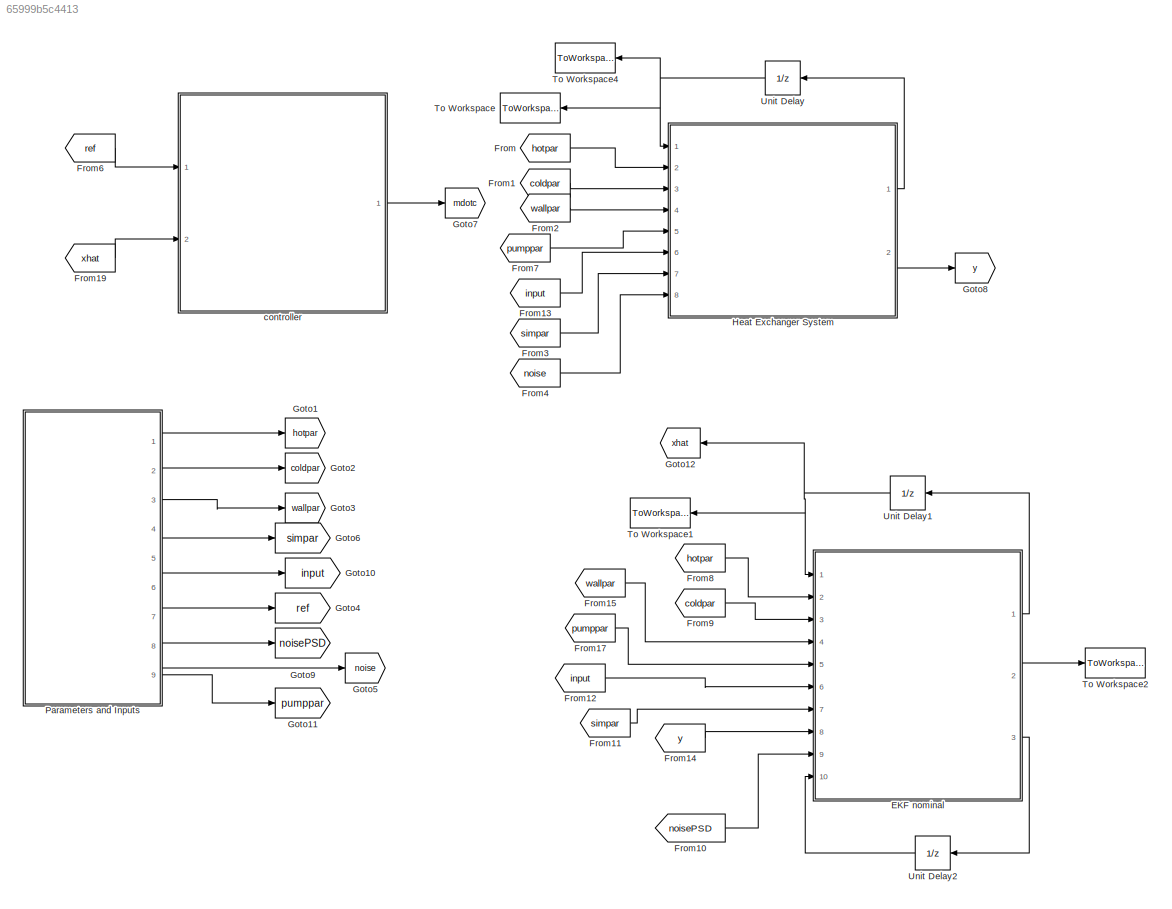
MODEL slx_65999b5c4413
KIND model
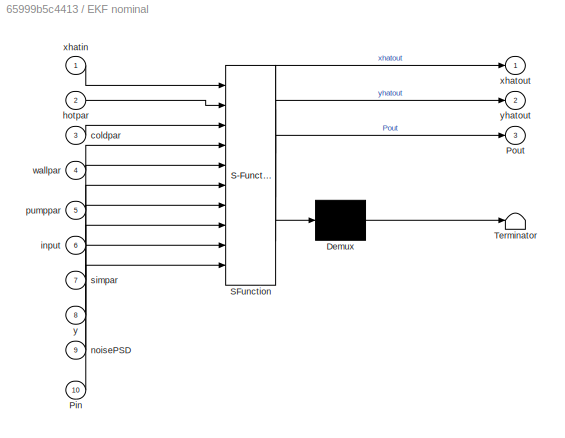
BLOCK [SubSystem] EKF nominal
  ErrorFcn = Stateflow.Translate.translate
  FunctionWithSeparateData = off
  MaskHideContents = off
  MinAlgLoopOccurrences = off
  Opaque = off
  PermitHierarchicalResolution = ExplicitOnly
  Ports = [10, 3]
  PropExecContextOutsideSubsystem = off
  RTWSystemCode = Auto
  RequestExecContextInheritance = off
  SFBlockType = MATLAB Function
  TreatAsAtomicUnit = on
BLOCK [Demux] EKF nominal/ Demux 
  Outputs = 1
  Ports = [1, 1]
BLOCK [S-Function] EKF nominal/ SFunction 
  EnableBusSupport = on
  FunctionName = sf_sfun
  PortCounts = [10 4]
  Ports = [10, 4]
  Tag = Stateflow S-Function HXpump_controller_sanity 1
BLOCK [Terminator] EKF nominal/ Terminator 
BLOCK [Inport] EKF nominal/Pin
  IconDisplay = Port number
  Port = 10
BLOCK [Outport] EKF nominal/Pout
  IconDisplay = Port number
  Port = 3
BLOCK [Inport] EKF nominal/coldpar
  IconDisplay = Port number
  Port = 3
BLOCK [Inport] EKF nominal/hotpar
  IconDisplay = Port number
  Port = 2
BLOCK [Inport] EKF nominal/input
  IconDisplay = Port number
  Port = 6
BLOCK [Inport] EKF nominal/noisePSD
  IconDisplay = Port number
  Port = 9
BLOCK [Inport] EKF nominal/pumppar
  IconDisplay = Port number
  Port = 5
BLOCK [Inport] EKF nominal/simpar
  IconDisplay = Port number
  Port = 7
BLOCK [Inport] EKF nominal/wallpar
  IconDisplay = Port number
  Port = 4
BLOCK [Inport] EKF nominal/xhatin
  IconDisplay = Port number
BLOCK [Outport] EKF nominal/xhatout
  IconDisplay = Port number
BLOCK [Inport] EKF nominal/y
  IconDisplay = Port number
  Port = 8
BLOCK [Outport] EKF nominal/yhatout
  IconDisplay = Port number
  Port = 2
BLOCK [From] From
  GotoTag = hotpar
  TagVisibility = global
BLOCK [From] From1
  GotoTag = coldpar
  TagVisibility = global
BLOCK [From] From10
  GotoTag = noisePSD
  TagVisibility = global
BLOCK [From] From11
  GotoTag = simpar
  TagVisibility = global
BLOCK [From] From12
  GotoTag = input
  TagVisibility = global
BLOCK [From] From13
  GotoTag = input
  TagVisibility = global
BLOCK [From] From14
  GotoTag = y
  TagVisibility = global
BLOCK [From] From15
  GotoTag = wallpar
  TagVisibility = global
BLOCK [From] From17
  GotoTag = pumppar
  TagVisibility = global
BLOCK [From] From19
  GotoTag = xhat
  TagVisibility = global
BLOCK [From] From2
  GotoTag = wallpar
  TagVisibility = global
BLOCK [From] From3
  GotoTag = simpar
  TagVisibility = global
BLOCK [From] From4
  GotoTag = noise
  TagVisibility = global
BLOCK [From] From6
  GotoTag = ref
  TagVisibility = global
BLOCK [From] From7
  GotoTag = pumppar
  TagVisibility = global
BLOCK [From] From8
  GotoTag = hotpar
  TagVisibility = global
BLOCK [From] From9
  GotoTag = coldpar
  TagVisibility = global
BLOCK [Goto] Goto1
  GotoTag = hotpar
  TagVisibility = global
BLOCK [Goto] Goto10
  GotoTag = input
  TagVisibility = global
BLOCK [Goto] Goto11
  GotoTag = pumppar
  TagVisibility = global
BLOCK [Goto] Goto12
  GotoTag = xhat
  TagVisibility = global
BLOCK [Goto] Goto2
  GotoTag = coldpar
  TagVisibility = global
BLOCK [Goto] Goto3
  GotoTag = wallpar
  TagVisibility = global
BLOCK [Goto] Goto4
  GotoTag = ref
  TagVisibility = global
BLOCK [Goto] Goto5
  GotoTag = noise
  TagVisibility = global
BLOCK [Goto] Goto6
  GotoTag = simpar
  TagVisibility = global
BLOCK [Goto] Goto7
  GotoTag = mdotc
  TagVisibility = global
BLOCK [Goto] Goto8
  GotoTag = y
  TagVisibility = global
BLOCK [Goto] Goto9
  GotoTag = noisePSD
  TagVisibility = global
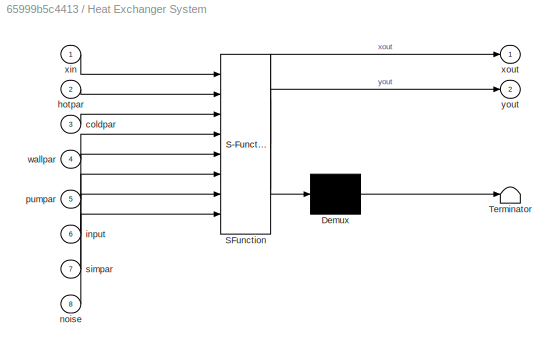
BLOCK [SubSystem] Heat Exchanger System
  ErrorFcn = Stateflow.Translate.translate
  FunctionWithSeparateData = off
  MaskHideContents = off
  MinAlgLoopOccurrences = off
  Opaque = off
  PermitHierarchicalResolution = ExplicitOnly
  Ports = [8, 2]
  PropExecContextOutsideSubsystem = off
  RTWSystemCode = Auto
  RequestExecContextInheritance = off
  SFBlockType = MATLAB Function
  TreatAsAtomicUnit = on
BLOCK [Demux] Heat Exchanger System/ Demux 
  Outputs = 1
  Ports = [1, 1]
BLOCK [S-Function] Heat Exchanger System/ SFunction 
  EnableBusSupport = on
  FunctionName = sf_sfun
  PortCounts = [8 3]
  Ports = [8, 3]
  Tag = Stateflow S-Function HXpump_controller_sanity 2
BLOCK [Terminator] Heat Exchanger System/ Terminator 
BLOCK [Inport] Heat Exchanger System/coldpar
  IconDisplay = Port number
  Port = 3
BLOCK [Inport] Heat Exchanger System/hotpar
  IconDisplay = Port number
  Port = 2
BLOCK [Inport] Heat Exchanger System/input
  IconDisplay = Port number
  Port = 6
BLOCK [Inport] Heat Exchanger System/noise
  IconDisplay = Port number
  Port = 8
BLOCK [Inport] Heat Exchanger System/pumpar
  IconDisplay = Port number
  Port = 5
BLOCK [Inport] Heat Exchanger System/simpar
  IconDisplay = Port number
  Port = 7
BLOCK [Inport] Heat Exchanger System/wallpar
  IconDisplay = Port number
  Port = 4
BLOCK [Inport] Heat Exchanger System/xin
  IconDisplay = Port number
BLOCK [Outport] Heat Exchanger System/xout
  IconDisplay = Port number
BLOCK [Outport] Heat Exchanger System/yout
  IconDisplay = Port number
  Port = 2
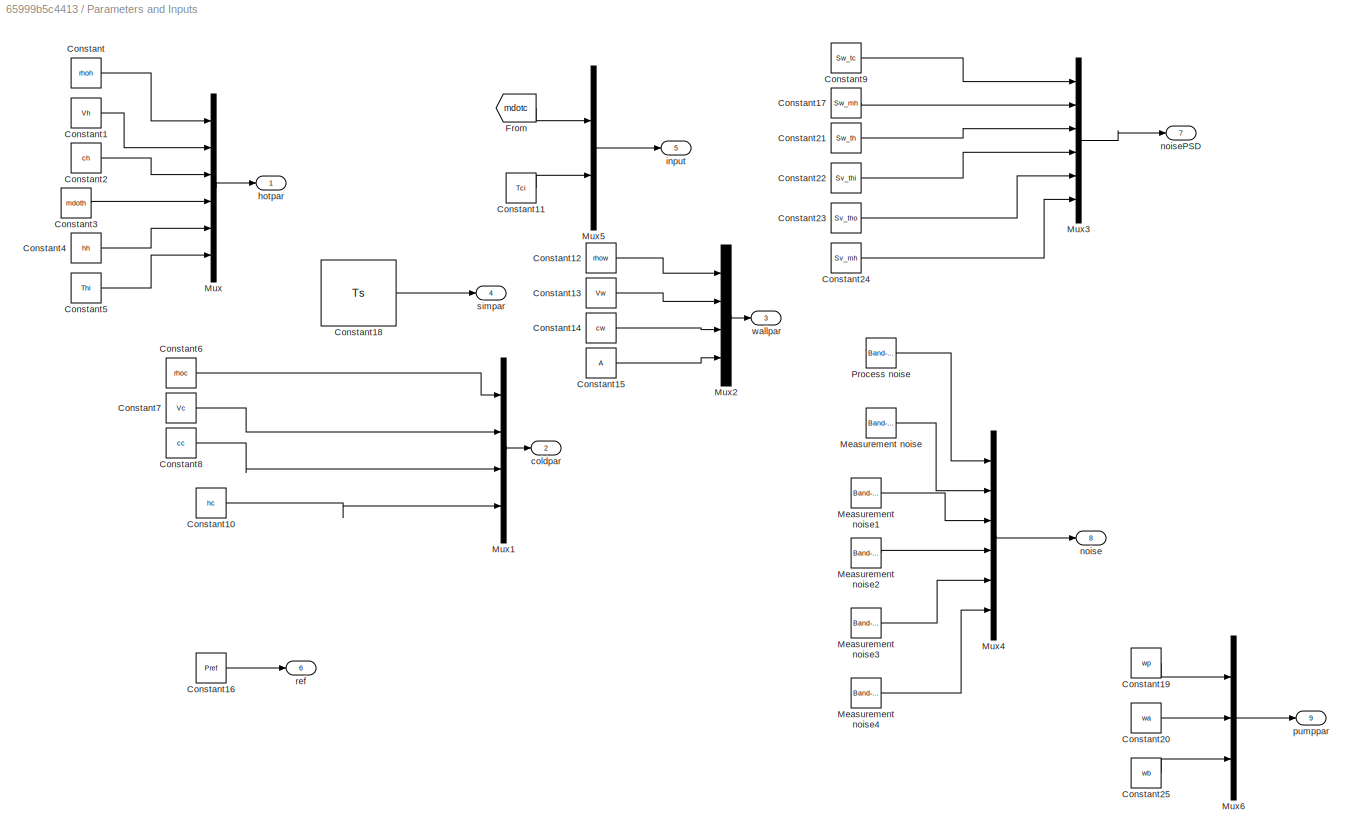
BLOCK [SubSystem] Parameters and Inputs
  FunctionWithSeparateData = off
  MaskHideContents = off
  MinAlgLoopOccurrences = off
  Opaque = off
  Ports = [0, 9]
  PropExecContextOutsideSubsystem = off
  RTWSystemCode = Auto
  RequestExecContextInheritance = off
BLOCK [Constant] Parameters and Inputs/Constant
  SampleTime = Ts
  Value = rhoh
BLOCK [Constant] Parameters and Inputs/Constant1
  SampleTime = Ts
  Value = Vh
BLOCK [Constant] Parameters and Inputs/Constant10
  SampleTime = Ts
  Value = hc
BLOCK [Constant] Parameters and Inputs/Constant11
  SampleTime = Ts
  Value = Tci
BLOCK [Constant] Parameters and Inputs/Constant12
  SampleTime = Ts
  Value = rhow
BLOCK [Constant] Parameters and Inputs/Constant13
  SampleTime = Ts
  Value = Vw
BLOCK [Constant] Parameters and Inputs/Constant14
  SampleTime = Ts
  Value = cw
BLOCK [Constant] Parameters and Inputs/Constant15
  SampleTime = Ts
  Value = A
BLOCK [Constant] Parameters and Inputs/Constant16
  SampleTime = Ts
  Value = Pref
BLOCK [Constant] Parameters and Inputs/Constant17
  SampleTime = Ts
  Value = Sw_mh
BLOCK [Constant] Parameters and Inputs/Constant18
  SampleTime = Ts
  Value = Ts
BLOCK [Constant] Parameters and Inputs/Constant19
  SampleTime = Ts
  Value = wp
BLOCK [Constant] Parameters and Inputs/Constant2
  SampleTime = Ts
  Value = ch
BLOCK [Constant] Parameters and Inputs/Constant20
  SampleTime = Ts
  Value = wa
BLOCK [Constant] Parameters and Inputs/Constant21
  SampleTime = Ts
  Value = Sw_th
BLOCK [Constant] Parameters and Inputs/Constant22
  SampleTime = Ts
  Value = Sv_thi
BLOCK [Constant] Parameters and Inputs/Constant23
  SampleTime = Ts
  Value = Sv_tho
BLOCK [Constant] Parameters and Inputs/Constant24
  SampleTime = Ts
  Value = Sv_mh
BLOCK [Constant] Parameters and Inputs/Constant25
  SampleTime = Ts
  Value = wb
BLOCK [Constant] Parameters and Inputs/Constant3
  SampleTime = Ts
  Value = mdoth
BLOCK [Constant] Parameters and Inputs/Constant4
  SampleTime = Ts
  Value = hh
BLOCK [Constant] Parameters and Inputs/Constant5
  SampleTime = Ts
  Value = Thi
BLOCK [Constant] Parameters and Inputs/Constant6
  SampleTime = Ts
  Value = rhoc
BLOCK [Constant] Parameters and Inputs/Constant7
  SampleTime = Ts
  Value = Vc
BLOCK [Constant] Parameters and Inputs/Constant8
  SampleTime = Ts
  Value = cc
BLOCK [Constant] Parameters and Inputs/Constant9
  SampleTime = Ts
  Value = Sw_tc
BLOCK [From] Parameters and Inputs/From
  GotoTag = mdotc
  TagVisibility = global
BLOCK [Reference] Parameters and Inputs/Measurement noise  REF=simulink/Sources/Band-Limited
White Noise
  Cov = 0
  Ports = [0, 1]
  SourceBlock = simulink/Sources/Band-Limited\nWhite Noise
  SourceType = Band-Limited White Noise.
  Ts = Ts
  VectorParams1D = on
  seed = [12345]
BLOCK [Reference] Parameters and Inputs/Measurement noise1  REF=simulink/Sources/Band-Limited
White Noise
  Cov = 0
  Ports = [0, 1]
  SourceBlock = simulink/Sources/Band-Limited\nWhite Noise
  SourceType = Band-Limited White Noise.
  Ts = Ts
  VectorParams1D = on
  seed = [23456]
BLOCK [Reference] Parameters and Inputs/Measurement noise2  REF=simulink/Sources/Band-Limited
White Noise
  Cov = Sv_thi*Ts
  Ports = [0, 1]
  SourceBlock = simulink/Sources/Band-Limited\nWhite Noise
  SourceType = Band-Limited White Noise.
  Ts = Ts
  VectorParams1D = on
  seed = [34567]
BLOCK [Reference] Parameters and Inputs/Measurement noise3  REF=simulink/Sources/Band-Limited
White Noise
  Cov = Sv_tho*Ts
  Ports = [0, 1]
  SourceBlock = simulink/Sources/Band-Limited\nWhite Noise
  SourceType = Band-Limited White Noise.
  Ts = Ts
  VectorParams1D = on
  seed = [45678]
BLOCK [Reference] Parameters and Inputs/Measurement noise4  REF=simulink/Sources/Band-Limited
White Noise
  Cov = Sv_mh*Ts
  Ports = [0, 1]
  SourceBlock = simulink/Sources/Band-Limited\nWhite Noise
  SourceType = Band-Limited White Noise.
  Ts = Ts
  VectorParams1D = on
  seed = [11111]
BLOCK [Mux] Parameters and Inputs/Mux
  DisplayOption = bar
  Inputs = 6
  Ports = [6, 1]
BLOCK [Mux] Parameters and Inputs/Mux1
  DisplayOption = bar
  Ports = [4, 1]
BLOCK [Mux] Parameters and Inputs/Mux2
  DisplayOption = bar
  Ports = [4, 1]
BLOCK [Mux] Parameters and Inputs/Mux3
  DisplayOption = bar
  Inputs = 6
  Ports = [6, 1]
BLOCK [Mux] Parameters and Inputs/Mux4
  DisplayOption = bar
  Inputs = 6
  Ports = [6, 1]
BLOCK [Mux] Parameters and Inputs/Mux5
  DisplayOption = bar
  Inputs = 2
  Ports = [2, 1]
BLOCK [Mux] Parameters and Inputs/Mux6
  DisplayOption = bar
  Inputs = 3
  Ports = [3, 1]
BLOCK [Reference] Parameters and Inputs/Process noise  REF=simulink/Sources/Band-Limited
White Noise
  Cov = 0
  Ports = [0, 1]
  SourceBlock = simulink/Sources/Band-Limited\nWhite Noise
  SourceType = Band-Limited White Noise.
  Ts = Ts
  VectorParams1D = on
  seed = [23341]
BLOCK [Outport] Parameters and Inputs/coldpar
  IconDisplay = Port number
  Port = 2
BLOCK [Outport] Parameters and Inputs/hotpar
  IconDisplay = Port number
BLOCK [Outport] Parameters and Inputs/input
  IconDisplay = Port number
  Port = 5
BLOCK [Outport] Parameters and Inputs/noise
  IconDisplay = Port number
  Port = 8
BLOCK [Outport] Parameters and Inputs/noisePSD
  IconDisplay = Port number
  Port = 7
BLOCK [Outport] Parameters and Inputs/pumppar
  IconDisplay = Port number
  Port = 9
BLOCK [Outport] Parameters and Inputs/ref
  IconDisplay = Port number
  Port = 6
BLOCK [Outport] Parameters and Inputs/simpar
  IconDisplay = Port number
  Port = 4
BLOCK [Outport] Parameters and Inputs/wallpar
  IconDisplay = Port number
  Port = 3
BLOCK [ToWorkspace] To Workspace
  MaxDataPoints = inf
  Ports = [1]
  SampleTime = -1
  VariableName = XDT
BLOCK [ToWorkspace] To Workspace1
  MaxDataPoints = inf
  Ports = [1]
  SampleTime = -1
  VariableName = xhat
BLOCK [ToWorkspace] To Workspace2
  MaxDataPoints = inf
  Ports = [1]
  SampleTime = -1
  VariableName = yhat
BLOCK [ToWorkspace] To Workspace4
  MaxDataPoints = inf
  Ports = [1]
  SampleTime = -1
  VariableName = xout
BLOCK [UnitDelay] Unit Delay
  InitialCondition = x0([1 2 3 6])
  InputProcessing = Elements as channels (sample based)
  SampleTime = -1
BLOCK [UnitDelay] Unit Delay1
  InitialCondition = x0
  InputProcessing = Elements as channels (sample based)
  SampleTime = -1
BLOCK [UnitDelay] Unit Delay2
  InitialCondition = PDT
  InputProcessing = Elements as channels (sample based)
  SampleTime = -1
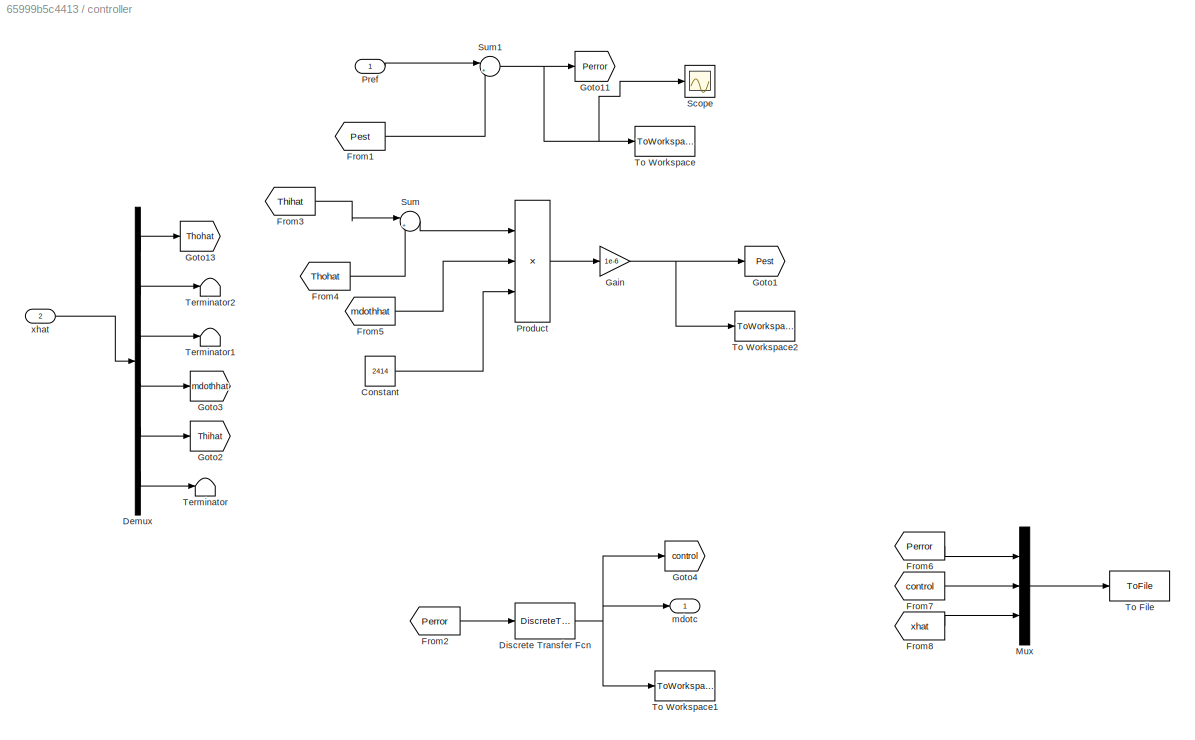
BLOCK [SubSystem] controller
  FunctionWithSeparateData = off
  MaskHideContents = off
  MinAlgLoopOccurrences = off
  Opaque = off
  Ports = [2, 1]
  PropExecContextOutsideSubsystem = off
  RTWSystemCode = Auto
  RequestExecContextInheritance = off
BLOCK [Constant] controller/Constant
  SampleTime = Ts
  Value = 2414
BLOCK [Demux] controller/Demux
  DisplayOption = bar
  Outputs = 6
  Ports = [1, 6]
BLOCK [DiscreteTransferFcn] controller/Discrete Transfer Fcn
  Denominator = [1 -1]
  InitialStates = 20
  InputPortMap = u0
  Numerator = [kp -(kp-ki*Ts)]
  Ports = [1, 1]
  SampleTime = Ts
BLOCK [From] controller/From1
  GotoTag = Pest
  TagVisibility = global
BLOCK [From] controller/From2
  GotoTag = Perror
  TagVisibility = global
BLOCK [From] controller/From3
  GotoTag = Thihat
  TagVisibility = global
BLOCK [From] controller/From4
  GotoTag = Thohat
  TagVisibility = global
BLOCK [From] controller/From5
  GotoTag = mdothhat
  TagVisibility = global
BLOCK [From] controller/From6
  GotoTag = Perror
  TagVisibility = global
BLOCK [From] controller/From7
  GotoTag = control
  TagVisibility = global
BLOCK [From] controller/From8
  GotoTag = xhat
  TagVisibility = global
BLOCK [Gain] controller/Gain
  Gain = 1e-6
  OutDataTypeStr = Inherit: Inherit via internal rule
  ParamDataTypeStr = Inherit: Inherit via internal rule
  SaturateOnIntegerOverflow = off
BLOCK [Goto] controller/Goto1
  GotoTag = Pest
  TagVisibility = global
BLOCK [Goto] controller/Goto11
  GotoTag = Perror
  TagVisibility = global
BLOCK [Goto] controller/Goto13
  GotoTag = Thohat
  TagVisibility = global
BLOCK [Goto] controller/Goto2
  GotoTag = Thihat
  TagVisibility = global
BLOCK [Goto] controller/Goto3
  GotoTag = mdothhat
  TagVisibility = global
BLOCK [Goto] controller/Goto4
  GotoTag = control
  TagVisibility = global
BLOCK [Mux] controller/Mux
  DisplayOption = bar
  Inputs = 3
  Ports = [3, 1]
BLOCK [Inport] controller/Pref
  IconDisplay = Port number
BLOCK [Product] controller/Product
  InputSameDT = off
  Inputs = 3
  OutDataTypeStr = Inherit: Inherit via internal rule
  Ports = [3, 1]
  RndMeth = Floor
  SaturateOnIntegerOverflow = off
BLOCK [Scope] controller/Scope
  DataFormat = StructureWithTime
  Floating = off
  LimitDataPoints = off
  NumInputPorts = 1
  Ports = [1]
  SampleTime = 0
  ShowLegends = off
BLOCK [Sum] controller/Sum
  IconShape = round
  InputSameDT = off
  Inputs = |+-
  OutDataTypeStr = Inherit: Inherit via internal rule
  Ports = [2, 1]
  SaturateOnIntegerOverflow = off
BLOCK [Sum] controller/Sum1
  IconShape = round
  InputSameDT = off
  Inputs = |+-
  OutDataTypeStr = Inherit: Inherit via internal rule
  Ports = [2, 1]
  SaturateOnIntegerOverflow = off
BLOCK [Terminator] controller/Terminator
BLOCK [Terminator] controller/Terminator1
BLOCK [Terminator] controller/Terminator2
BLOCK [ToFile] controller/To File
  Filename = xkalsanity.mat
  MatrixName = xkalsanity
  Ports = [1]
BLOCK [ToWorkspace] controller/To Workspace
  MaxDataPoints = inf
  Ports = [1]
  SampleTime = -1
  VariableName = Perror
BLOCK [ToWorkspace] controller/To Workspace1
  MaxDataPoints = inf
  Ports = [1]
  SampleTime = -1
  VariableName = control
BLOCK [ToWorkspace] controller/To Workspace2
  MaxDataPoints = inf
  Ports = [1]
  SampleTime = -1
  VariableName = Pest
BLOCK [Outport] controller/mdotc
  IconDisplay = Port number
BLOCK [Inport] controller/xhat
  IconDisplay = Port number
  Port = 2
LINE EKF nominal:1 -> Unit Delay1:1
LINE EKF nominal:2 -> To Workspace2:1
LINE EKF nominal:3 -> Unit Delay2:1
LINE From10:1 -> EKF nominal:9
LINE From11:1 -> EKF nominal:7
LINE From12:1 -> EKF nominal:6
LINE From13:1 -> Heat Exchanger System:6
LINE From14:1 -> EKF nominal:8
LINE From15:1 -> EKF nominal:4
LINE From17:1 -> EKF nominal:5
LINE From19:1 -> controller:2
LINE From1:1 -> Heat Exchanger System:3
LINE From2:1 -> Heat Exchanger System:4
LINE From3:1 -> Heat Exchanger System:7
LINE From4:1 -> Heat Exchanger System:8
LINE From6:1 -> controller:1
LINE From7:1 -> Heat Exchanger System:5
LINE From8:1 -> EKF nominal:2
LINE From9:1 -> EKF nominal:3
LINE From:1 -> Heat Exchanger System:2
LINE Heat Exchanger System:1 -> Unit Delay:1
LINE Heat Exchanger System:2 -> Goto8:1
LINE Parameters and Inputs/Constant10:1 -> Parameters and Inputs/Mux1:4
LINE Parameters and Inputs/Constant11:1 -> Parameters and Inputs/Mux5:2
LINE Parameters and Inputs/Constant12:1 -> Parameters and Inputs/Mux2:1
LINE Parameters and Inputs/Constant13:1 -> Parameters and Inputs/Mux2:2
LINE Parameters and Inputs/Constant14:1 -> Parameters and Inputs/Mux2:3
LINE Parameters and Inputs/Constant15:1 -> Parameters and Inputs/Mux2:4
LINE Parameters and Inputs/Constant16:1 -> Parameters and Inputs/ref:1
LINE Parameters and Inputs/Constant17:1 -> Parameters and Inputs/Mux3:2
LINE Parameters and Inputs/Constant18:1 -> Parameters and Inputs/simpar:1
LINE Parameters and Inputs/Constant19:1 -> Parameters and Inputs/Mux6:1
LINE Parameters and Inputs/Constant1:1 -> Parameters and Inputs/Mux:2
LINE Parameters and Inputs/Constant20:1 -> Parameters and Inputs/Mux6:2
LINE Parameters and Inputs/Constant21:1 -> Parameters and Inputs/Mux3:3
LINE Parameters and Inputs/Constant22:1 -> Parameters and Inputs/Mux3:4
LINE Parameters and Inputs/Constant23:1 -> Parameters and Inputs/Mux3:5
LINE Parameters and Inputs/Constant24:1 -> Parameters and Inputs/Mux3:6
LINE Parameters and Inputs/Constant25:1 -> Parameters and Inputs/Mux6:3
LINE Parameters and Inputs/Constant2:1 -> Parameters and Inputs/Mux:3
LINE Parameters and Inputs/Constant3:1 -> Parameters and Inputs/Mux:4
LINE Parameters and Inputs/Constant4:1 -> Parameters and Inputs/Mux:5
LINE Parameters and Inputs/Constant5:1 -> Parameters and Inputs/Mux:6
LINE Parameters and Inputs/Constant6:1 -> Parameters and Inputs/Mux1:1
LINE Parameters and Inputs/Constant7:1 -> Parameters and Inputs/Mux1:2
LINE Parameters and Inputs/Constant8:1 -> Parameters and Inputs/Mux1:3
LINE Parameters and Inputs/Constant9:1 -> Parameters and Inputs/Mux3:1
LINE Parameters and Inputs/Constant:1 -> Parameters and Inputs/Mux:1
LINE Parameters and Inputs/From:1 -> Parameters and Inputs/Mux5:1
LINE Parameters and Inputs/Measurement noise1:1 -> Parameters and Inputs/Mux4:3
LINE Parameters and Inputs/Measurement noise2:1 -> Parameters and Inputs/Mux4:4
LINE Parameters and Inputs/Measurement noise3:1 -> Parameters and Inputs/Mux4:5
LINE Parameters and Inputs/Measurement noise4:1 -> Parameters and Inputs/Mux4:6
LINE Parameters and Inputs/Measurement noise:1 -> Parameters and Inputs/Mux4:2
LINE Parameters and Inputs/Mux1:1 -> Parameters and Inputs/coldpar:1
LINE Parameters and Inputs/Mux2:1 -> Parameters and Inputs/wallpar:1
LINE Parameters and Inputs/Mux3:1 -> Parameters and Inputs/noisePSD:1
LINE Parameters and Inputs/Mux4:1 -> Parameters and Inputs/noise:1
LINE Parameters and Inputs/Mux5:1 -> Parameters and Inputs/input:1
LINE Parameters and Inputs/Mux6:1 -> Parameters and Inputs/pumppar:1
LINE Parameters and Inputs/Mux:1 -> Parameters and Inputs/hotpar:1
LINE Parameters and Inputs/Process noise:1 -> Parameters and Inputs/Mux4:1
LINE Parameters and Inputs:1 -> Goto1:1
LINE Parameters and Inputs:2 -> Goto2:1
LINE Parameters and Inputs:3 -> Goto3:1
LINE Parameters and Inputs:4 -> Goto6:1
LINE Parameters and Inputs:5 -> Goto10:1
LINE Parameters and Inputs:6 -> Goto4:1
LINE Parameters and Inputs:7 -> Goto9:1
LINE Parameters and Inputs:8 -> Goto5:1
LINE Parameters and Inputs:9 -> Goto11:1
NET Unit Delay1:1 -> EKF nominal:1, Goto12:1, To Workspace1:1
LINE Unit Delay2:1 -> EKF nominal:10
NET Unit Delay:1 -> Heat Exchanger System:1, To Workspace4:1, To Workspace:1
LINE controller/Constant:1 -> controller/Product:3
LINE controller/Demux:1 -> controller/Goto13:1
LINE controller/Demux:2 -> controller/Terminator2:1
LINE controller/Demux:3 -> controller/Terminator1:1
LINE controller/Demux:4 -> controller/Goto3:1
LINE controller/Demux:5 -> controller/Goto2:1
LINE controller/Demux:6 -> controller/Terminator:1
NET controller/Discrete Transfer Fcn:1 -> controller/Goto4:1, controller/To Workspace1:1, controller/mdotc:1
LINE controller/From1:1 -> controller/Sum1:2
LINE controller/From2:1 -> controller/Discrete Transfer Fcn:1
LINE controller/From3:1 -> controller/Sum:1
LINE controller/From4:1 -> controller/Sum:2
LINE controller/From5:1 -> controller/Product:2
LINE controller/From6:1 -> controller/Mux:1
LINE controller/From7:1 -> controller/Mux:2
LINE controller/From8:1 -> controller/Mux:3
NET controller/Gain:1 -> controller/Goto1:1, controller/To Workspace2:1
LINE controller/Mux:1 -> controller/To File:1
LINE controller/Pref:1 -> controller/Sum1:1
LINE controller/Product:1 -> controller/Gain:1
NET controller/Sum1:1 -> controller/Goto11:1, controller/Scope:1, controller/To Workspace:1
LINE controller/Sum:1 -> controller/Product:1
LINE controller/xhat:1 -> controller/Demux:1
LINE controller:1 -> Goto7:1
note: NET lines group one-source signal fan-out (src -> all destinations, sorted); 1:1 wires keep LINE
